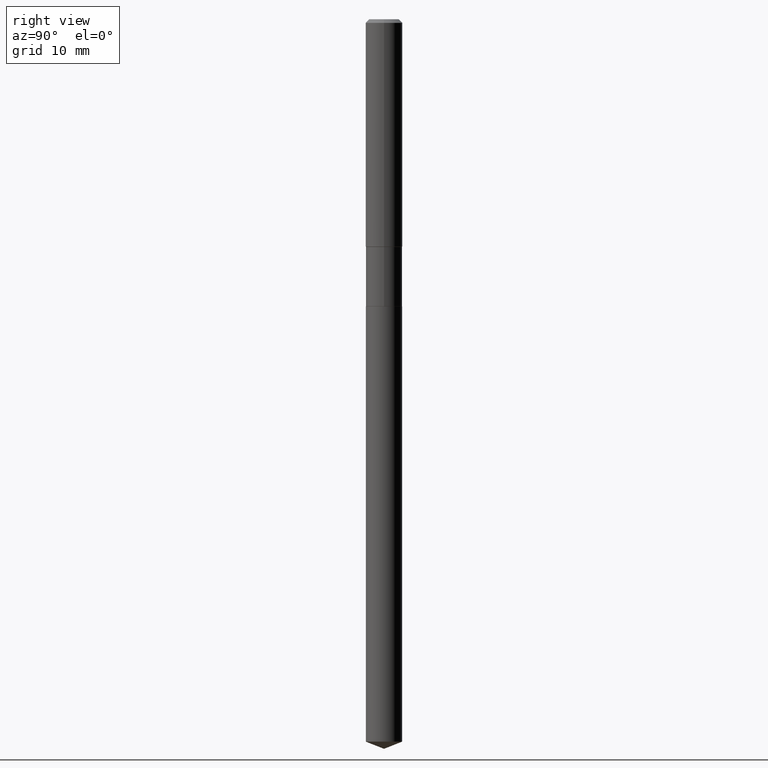
[diagram: clean part render]
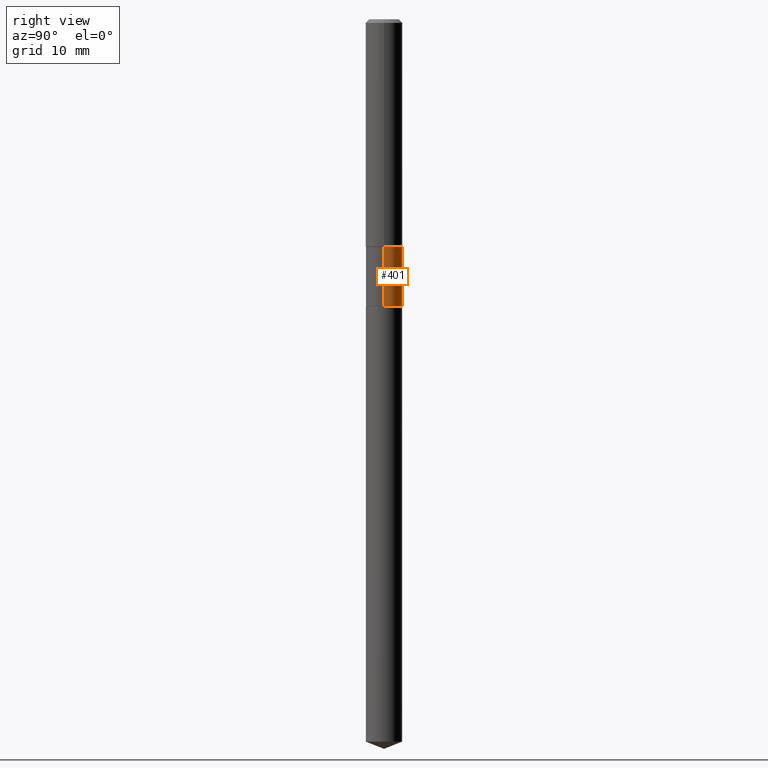
[diagram: same view with one face highlighted and labeled with its STEP entity id]
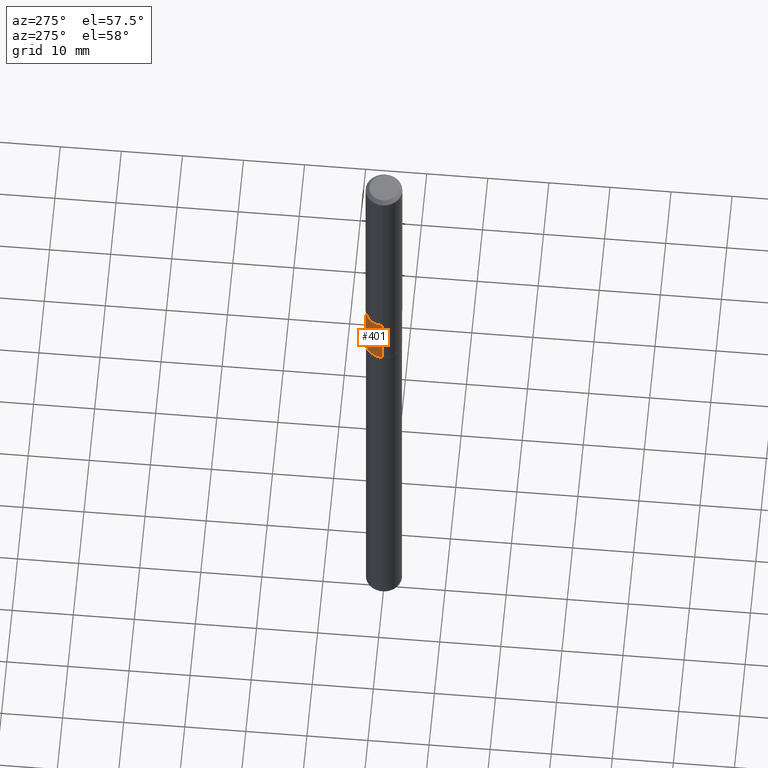
[diagram: same view with one face highlighted and labeled with its STEP entity id]
A machine part, right view. The second image highlights one B-rep face of the part: STEP entity #401.
A second angle (auxiliary view) of the same face is appended — the face is thin or edge-on in the first view.
In plain terms, the highlighted cylindrical surface (edge-blend (fillet) strip) has radius 2.9502 mm, axis along (-0, 0, 1).
Its self-contained STEP definition (entity closure, byte-faithful):
#7 = AXIS2_PLACEMENT_3D ( 'NONE', #71, #118, #150 ) ;
#10 = VERTEX_POINT ( 'NONE', #484 ) ;
#31 = VECTOR ( 'NONE', #264, 39.37007874015748143 ) ;
#62 = DIRECTION ( 'NONE',  ( 1.000000000000000000, -6.982962677686265922E-15, 0.000000000000000000 ) ) ;
#65 = FACE_OUTER_BOUND ( 'NONE', #378, .T. ) ;
#71 = CARTESIAN_POINT ( 'NONE',  ( 0.000000000000000000, 0.000000000000000000, 0.000000000000000000 ) ) ;
#84 = ORIENTED_EDGE ( 'NONE', *, *, #377, .T. ) ;
#103 = DIRECTION ( 'NONE',  ( -2.445468806185136597E-29, 3.491481338843145583E-15, 1.000000000000000000 ) ) ;
#115 = ORIENTED_EDGE ( 'NONE', *, *, #121, .F. ) ;
#116 = LINE ( 'NONE', #152, #31 ) ;
#118 = DIRECTION ( 'NONE',  ( -2.445468806185136597E-29, 3.491481338843145583E-15, 1.000000000000000000 ) ) ;
#121 = EDGE_CURVE ( 'NONE', #233, #164, #250, .T. ) ;
#127 = CIRCLE ( 'NONE', #469, 0.1161500000000000032 ) ;
#134 = DIRECTION ( 'NONE',  ( -2.445468806185136877E-29, 3.491481338843145188E-15, 1.000000000000000000 ) ) ;
#150 = DIRECTION ( 'NONE',  ( 1.000000000000000000, -6.982962677686266711E-15, 4.876176775795935232E-29 ) ) ;
#152 = CARTESIAN_POINT ( 'NONE',  ( 0.1161499999999999755, -8.110711150132597459E-16, 5.663679325086977697E-30 ) ) ;
#162 = ORIENTED_EDGE ( 'NONE', *, *, #193, .T. ) ;
#164 = VERTEX_POINT ( 'NONE', #238 ) ;
#167 = DIRECTION ( 'NONE',  ( 1.000000000000000000, -6.982962677686269866E-15, 0.000000000000000000 ) ) ;
#193 = EDGE_CURVE ( 'NONE', #350, #164, #309, .T. ) ;
#221 = CARTESIAN_POINT ( 'NONE',  ( 4.509444478605390880E-29, -6.438291588826759175E-15, -1.843999999999999417 ) ) ;
#233 = VERTEX_POINT ( 'NONE', #323 ) ;
#238 = CARTESIAN_POINT ( 'NONE',  ( -0.1161499999999999477, -4.944726672986823807E-15, -1.461199999999999166 ) ) ;
#250 = CIRCLE ( 'NONE', #410, 0.1161499999999999477 ) ;
#264 = DIRECTION ( 'NONE',  ( -2.445468806185136877E-29, 3.491481338843145188E-15, 1.000000000000000000 ) ) ;
#279 = DIRECTION ( 'NONE',  ( -2.445468806185136597E-29, 3.491481338843145583E-15, 1.000000000000000000 ) ) ;
#291 = CARTESIAN_POINT ( 'NONE',  ( -0.1161500000000000032, -4.944726672986823807E-15, -1.843999999999999417 ) ) ;
#309 = LINE ( 'NONE', #490, #381 ) ;
#323 = CARTESIAN_POINT ( 'NONE',  ( 0.1161499999999999477, -5.912823647330860568E-15, -1.461199999999999166 ) ) ;
#350 = VERTEX_POINT ( 'NONE', #291 ) ;
#377 = EDGE_CURVE ( 'NONE', #10, #350, #127, .T. ) ;
#378 = EDGE_LOOP ( 'NONE', ( #84, #162, #115, #485 ) ) ;
#381 = VECTOR ( 'NONE', #134, 39.37007874015748143 ) ;
#390 = CARTESIAN_POINT ( 'NONE',  ( 3.573319019597719083E-29, -5.101752532317600822E-15, -1.461199999999999166 ) ) ;
#401 = ADVANCED_FACE ( 'NONE', ( #65 ), #480, .T. ) ;
#410 = AXIS2_PLACEMENT_3D ( 'NONE', #390, #279, #167 ) ;
#432 = EDGE_CURVE ( 'NONE', #10, #233, #116, .T. ) ;
#469 = AXIS2_PLACEMENT_3D ( 'NONE', #221, #103, #62 ) ;
#480 = CYLINDRICAL_SURFACE ( 'NONE', #7, 0.1161499999999999755 ) ;
#484 = CARTESIAN_POINT ( 'NONE',  ( 0.1161500000000000032, -7.249362703840018921E-15, -1.843999999999999417 ) ) ;
#485 = ORIENTED_EDGE ( 'NONE', *, *, #432, .F. ) ;
#490 = CARTESIAN_POINT ( 'NONE',  ( -0.1161499999999999755, 8.252953875853561917E-16, -5.713343107331072131E-30 ) ) ;